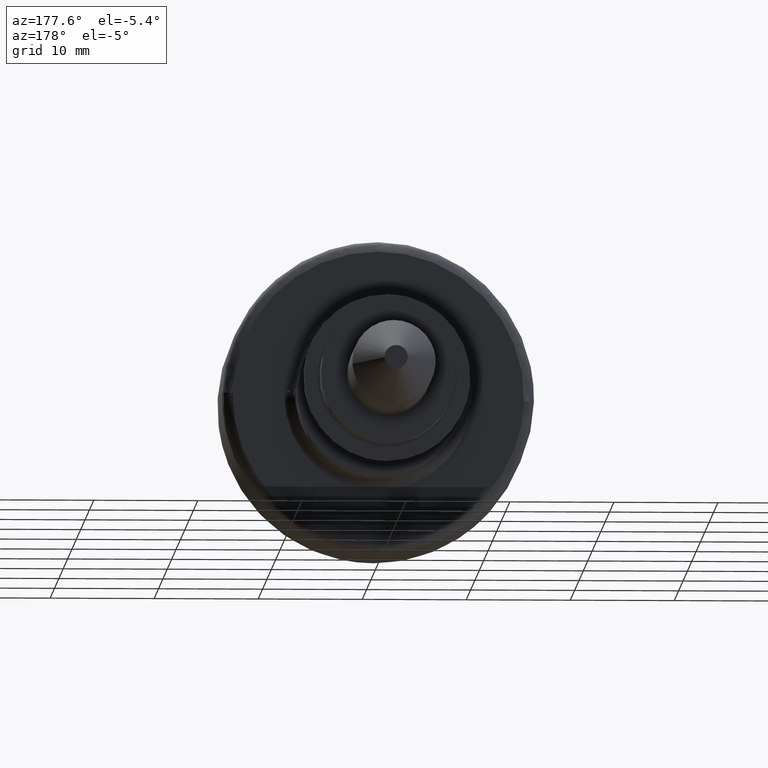
[diagram: clean part render]
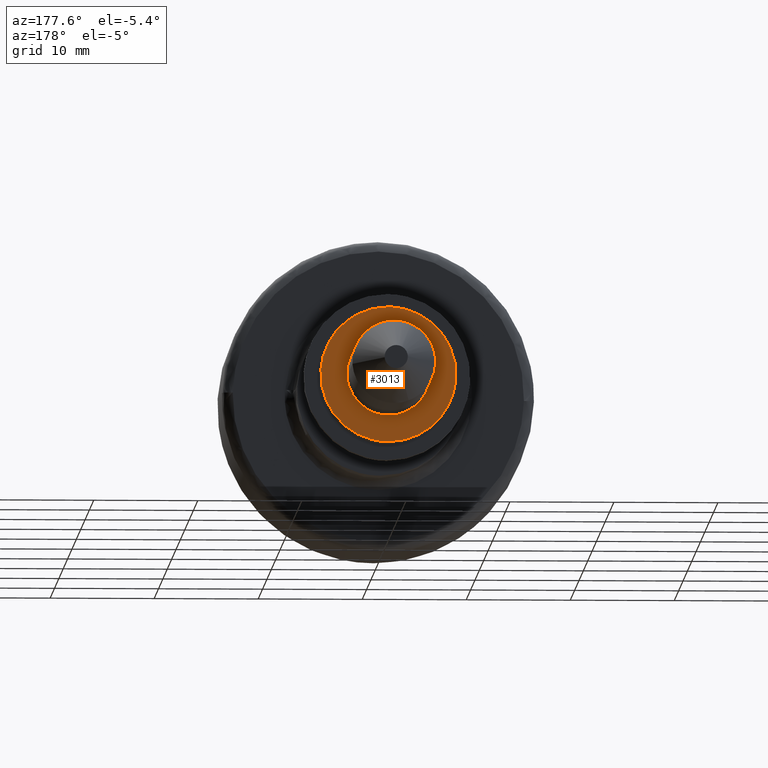
[diagram: same view with one face highlighted and labeled with its STEP entity id]
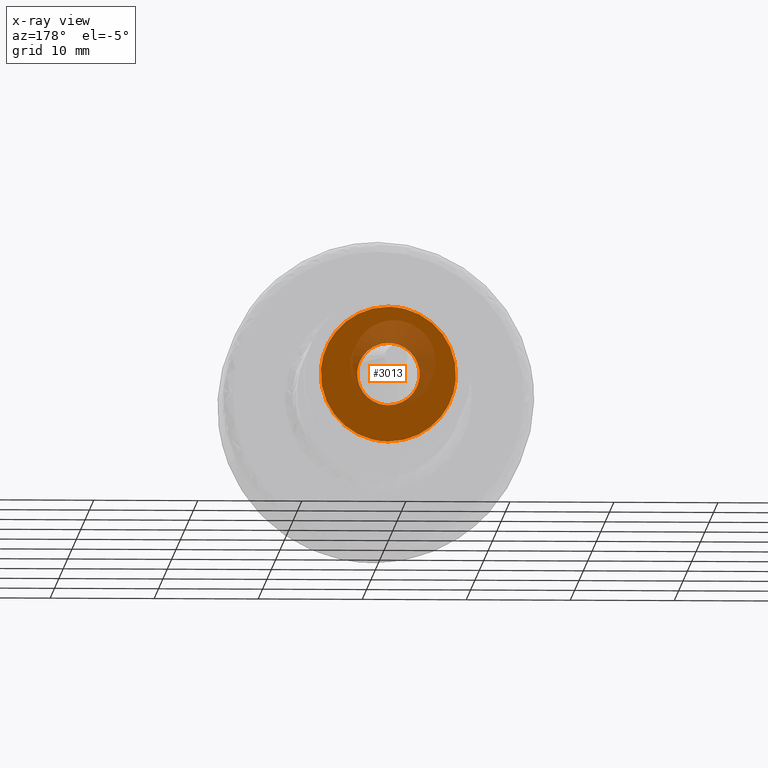
[diagram: x-ray of the same camera — body ghosted, the highlighted face saturated]
A machine part, auxiliary view. The second image highlights one B-rep face of the part: STEP entity #3013.
The next image is the same camera in x-ray: the body ghosted, the highlighted face saturated — about 25% of this face is hidden behind the body in this view.
In plain terms, the highlighted face is a freeform B-spline surface patch.
Its self-contained STEP definition (entity closure, byte-faithful):
#2666=CARTESIAN_POINT('',(10.0,2.990752001197810,-0.235377287203528));
#2667=VERTEX_POINT('',#2666);
#2673=CARTESIAN_POINT('',(10.0,0.0,3.0));
#2674=VERTEX_POINT('',#2673);
#2675=CARTESIAN_POINT('',(9.999999999999998,2.990752001197810,-0.235377287203528));
#2676=CARTESIAN_POINT('',(9.999999999999998,3.0,-0.117870321043094));
#2677=CARTESIAN_POINT('',(10.0,3.0,0.0));
#2678=CARTESIAN_POINT('',(10.000000000000002,3.0,3.0));
#2679=CARTESIAN_POINT('',(10.0,0.0,3.0));
#2687=(BOUNDED_CURVE()B_SPLINE_CURVE(2,(#2675,#2676,#2677,#2678,#2679),.UNSPECIFIED.,.F.,.U.)B_SPLINE_CURVE_WITH_KNOTS((3,2,3),(0.736331300630475,0.750000000000000,1.0),.UNSPECIFIED.)CURVE()GEOMETRIC_REPRESENTATION_ITEM()RATIONAL_B_SPLINE_CURVE((0.969723356167032,0.983986122578666,1.0,0.707106781186548,1.0))REPRESENTATION_ITEM(''));
#2688=EDGE_CURVE('',#2667,#2674,#2687,.T.);
#2690=CARTESIAN_POINT('',(10.0,-2.990752001197810,0.235377287203528));
#2691=VERTEX_POINT('',#2690);
#2692=CARTESIAN_POINT('',(10.0,0.0,3.0));
#2693=CARTESIAN_POINT('',(10.0,-2.773171474937433,3.000000000000001));
#2694=CARTESIAN_POINT('',(10.0,-2.990752001197810,0.235377287203528));
#2702=(BOUNDED_CURVE()B_SPLINE_CURVE(2,(#2692,#2693,#2694),.UNSPECIFIED.,.F.,.U.)B_SPLINE_CURVE_WITH_KNOTS((3,3),(0.0,0.236331300630475),.UNSPECIFIED.)CURVE()GEOMETRIC_REPRESENTATION_ITEM()RATIONAL_B_SPLINE_CURVE((1.0,0.723120658607882,0.969723356167033))REPRESENTATION_ITEM(''));
#2703=EDGE_CURVE('',#2674,#2691,#2702,.T.);
#2749=CARTESIAN_POINT('',(10.0,0.0,-3.0));
#2750=VERTEX_POINT('',#2749);
#2751=CARTESIAN_POINT('',(9.999999999999998,-2.990752001197810,0.235377287203528));
#2752=CARTESIAN_POINT('',(9.999999999999998,-3.0,0.117870321043094));
#2753=CARTESIAN_POINT('',(10.0,-3.0,0.0));
#2754=CARTESIAN_POINT('',(10.000000000000002,-3.0,-3.0));
#2755=CARTESIAN_POINT('',(10.0,0.0,-3.0));
#2763=(BOUNDED_CURVE()B_SPLINE_CURVE(2,(#2751,#2752,#2753,#2754,#2755),.UNSPECIFIED.,.F.,.U.)B_SPLINE_CURVE_WITH_KNOTS((3,2,3),(0.236331300630475,0.250000000000000,0.500000000000000),.UNSPECIFIED.)CURVE()GEOMETRIC_REPRESENTATION_ITEM()RATIONAL_B_SPLINE_CURVE((0.969723356167032,0.983986122578666,1.0,0.707106781186548,1.0))REPRESENTATION_ITEM(''));
#2764=EDGE_CURVE('',#2691,#2750,#2763,.T.);
#2766=CARTESIAN_POINT('',(10.0,0.0,-3.0));
#2767=CARTESIAN_POINT('',(10.0,2.773171474937423,-3.000000000000000));
#2768=CARTESIAN_POINT('',(10.000000000000002,2.990752001197810,-0.235377287203528));
#2776=(BOUNDED_CURVE()B_SPLINE_CURVE(2,(#2766,#2767,#2768),.UNSPECIFIED.,.F.,.U.)B_SPLINE_CURVE_WITH_KNOTS((3,3),(0.500000000000000,0.736331300630475),.UNSPECIFIED.)CURVE()GEOMETRIC_REPRESENTATION_ITEM()RATIONAL_B_SPLINE_CURVE((1.0,0.723120658607882,0.969723356167032))REPRESENTATION_ITEM(''));
#2777=EDGE_CURVE('',#2750,#2667,#2776,.T.);
#2831=CARTESIAN_POINT('',(10.0,-6.479962669261537,0.509984122279199));
#2832=VERTEX_POINT('',#2831);
#2838=CARTESIAN_POINT('',(10.0,0.0,6.500000000000000));
#2839=VERTEX_POINT('',#2838);
#2840=CARTESIAN_POINT('',(10.0,0.0,6.500000000000000));
#2841=CARTESIAN_POINT('',(10.0,-6.008538195688675,6.499999999999999));
#2842=CARTESIAN_POINT('',(10.0,-6.479962669261537,0.509984122279199));
#2850=(BOUNDED_CURVE()B_SPLINE_CURVE(2,(#2840,#2841,#2842),.UNSPECIFIED.,.F.,.U.)B_SPLINE_CURVE_WITH_KNOTS((3,3),(0.0,0.236331300630217),.UNSPECIFIED.)CURVE()GEOMETRIC_REPRESENTATION_ITEM()RATIONAL_B_SPLINE_CURVE((1.0,0.723120658608185,0.969723356166493))REPRESENTATION_ITEM(''));
#2851=EDGE_CURVE('',#2839,#2832,#2850,.T.);
#2853=CARTESIAN_POINT('',(10.0,6.479962669261537,-0.509984122279199));
#2854=VERTEX_POINT('',#2853);
#2855=CARTESIAN_POINT('',(10.0,6.479962669261537,-0.509984122279199));
#2856=CARTESIAN_POINT('',(10.000000000000002,6.500000000000001,-0.255385695598280));
#2857=CARTESIAN_POINT('',(10.0,6.500000000000000,0.0));
#2858=CARTESIAN_POINT('',(10.0,6.500000000000000,6.500000000000000));
#2859=CARTESIAN_POINT('',(10.0,0.0,6.500000000000000));
#2867=(BOUNDED_CURVE()B_SPLINE_CURVE(2,(#2855,#2856,#2857,#2858,#2859),.UNSPECIFIED.,.F.,.U.)B_SPLINE_CURVE_WITH_KNOTS((3,2,3),(0.736331300630216,0.750000000000000,1.0),.UNSPECIFIED.)CURVE()GEOMETRIC_REPRESENTATION_ITEM()RATIONAL_B_SPLINE_CURVE((0.969723356166493,0.983986122578363,1.0,0.707106781186547,1.0))REPRESENTATION_ITEM(''));
#2868=EDGE_CURVE('',#2854,#2839,#2867,.T.);
#2944=CARTESIAN_POINT('',(10.0,0.0,-6.500000000000000));
#2945=VERTEX_POINT('',#2944);
#2946=CARTESIAN_POINT('',(10.0,0.0,-6.500000000000000));
#2947=CARTESIAN_POINT('',(9.999999999999998,6.008538195688694,-6.500000000000000));
#2948=CARTESIAN_POINT('',(10.0,6.479962669261537,-0.509984122279199));
#2956=(BOUNDED_CURVE()B_SPLINE_CURVE(2,(#2946,#2947,#2948),.UNSPECIFIED.,.F.,.U.)B_SPLINE_CURVE_WITH_KNOTS((3,3),(0.500000000000000,0.736331300630217),.UNSPECIFIED.)CURVE()GEOMETRIC_REPRESENTATION_ITEM()RATIONAL_B_SPLINE_CURVE((1.0,0.723120658608184,0.969723356166494))REPRESENTATION_ITEM(''));
#2957=EDGE_CURVE('',#2945,#2854,#2956,.T.);
#2959=CARTESIAN_POINT('',(10.0,-6.479962669261537,0.509984122279199));
#2960=CARTESIAN_POINT('',(10.000000000000002,-6.500000000000001,0.255385695598280));
#2961=CARTESIAN_POINT('',(10.0,-6.500000000000000,0.0));
#2962=CARTESIAN_POINT('',(10.0,-6.500000000000000,-6.500000000000000));
#2963=CARTESIAN_POINT('',(10.0,0.0,-6.500000000000000));
#2971=(BOUNDED_CURVE()B_SPLINE_CURVE(2,(#2959,#2960,#2961,#2962,#2963),.UNSPECIFIED.,.F.,.U.)B_SPLINE_CURVE_WITH_KNOTS((3,2,3),(0.236331300630217,0.250000000000000,0.500000000000000),.UNSPECIFIED.)CURVE()GEOMETRIC_REPRESENTATION_ITEM()RATIONAL_B_SPLINE_CURVE((0.969723356166493,0.983986122578363,1.0,0.707106781186547,1.0))REPRESENTATION_ITEM(''));
#2972=EDGE_CURVE('',#2832,#2945,#2971,.T.);
#2996=CARTESIAN_POINT('',(10.0,-7.147365892724531,7.149349974803477));
#2997=CARTESIAN_POINT('',(10.0,7.147366241411703,7.149349974803477));
#2998=CARTESIAN_POINT('',(10.0,-7.147365892724531,-7.149350323490650));
#2999=CARTESIAN_POINT('',(10.0,7.147366241411703,-7.149350323490650));
#3000=B_SPLINE_SURFACE_WITH_KNOTS('',1,1,((#2996,#2998),(#2997,#2999)),.UNSPECIFIED.,.F.,.F.,.U.,(2,2),(2,2),(0.0,14.294732134136231),(0.0,14.298700298294129),.UNSPECIFIED.);
#3001=ORIENTED_EDGE('',*,*,#2851,.T.);
#3002=ORIENTED_EDGE('',*,*,#2972,.T.);
#3003=ORIENTED_EDGE('',*,*,#2957,.T.);
#3004=ORIENTED_EDGE('',*,*,#2868,.T.);
#3005=EDGE_LOOP('',(#3001,#3002,#3003,#3004));
#3006=FACE_OUTER_BOUND('',#3005,.T.);
#3007=ORIENTED_EDGE('',*,*,#2777,.F.);
#3008=ORIENTED_EDGE('',*,*,#2764,.F.);
#3009=ORIENTED_EDGE('',*,*,#2703,.F.);
#3010=ORIENTED_EDGE('',*,*,#2688,.F.);
#3011=EDGE_LOOP('',(#3007,#3008,#3009,#3010));
#3012=FACE_BOUND('',#3011,.T.);
#3013=ADVANCED_FACE('',(#3006,#3012),#3000,.F.);